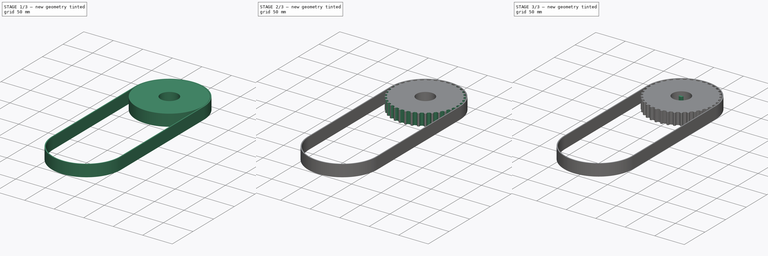
[diagram: build sequence overview — one tinted view per stage of 3, left to right]
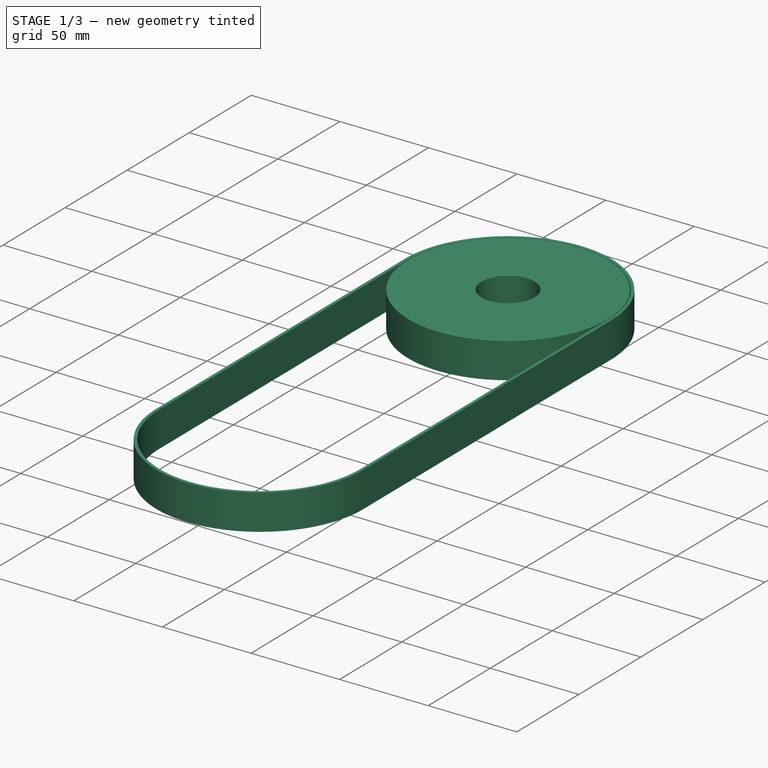
[diagram: stage 1 of 3 — iso view after this stage's code; geometry added in this stage tinted green]
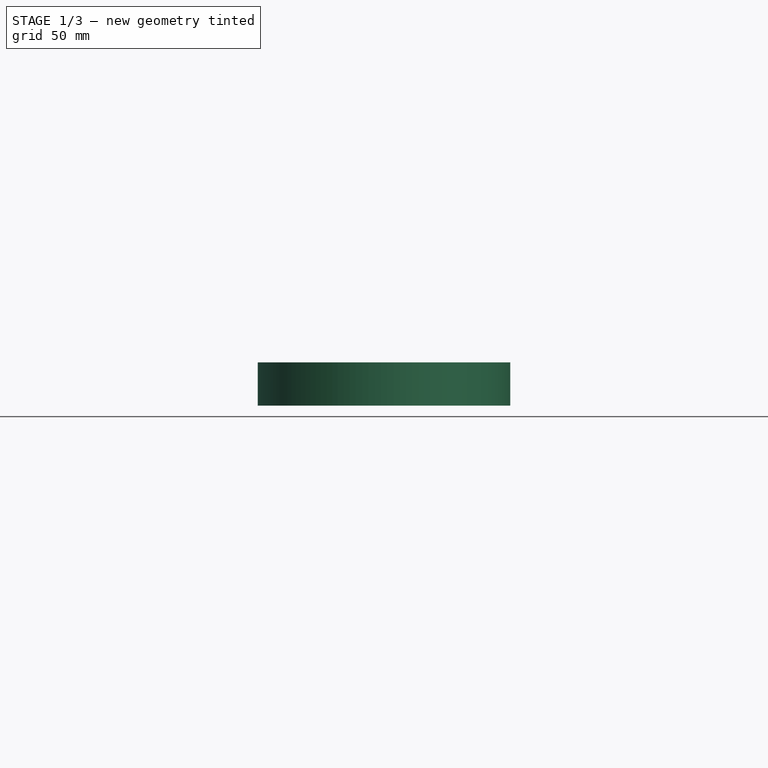
[diagram: stage 1 of 3 — front view after this stage's code; geometry added in this stage tinted green]
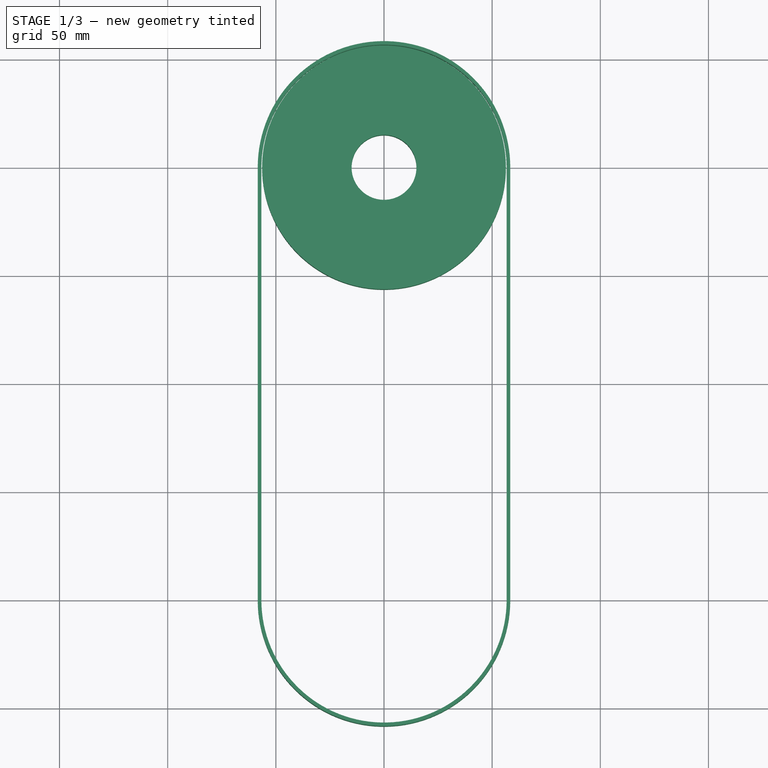
[diagram: stage 1 of 3 — top view after this stage's code; geometry added in this stage tinted green]
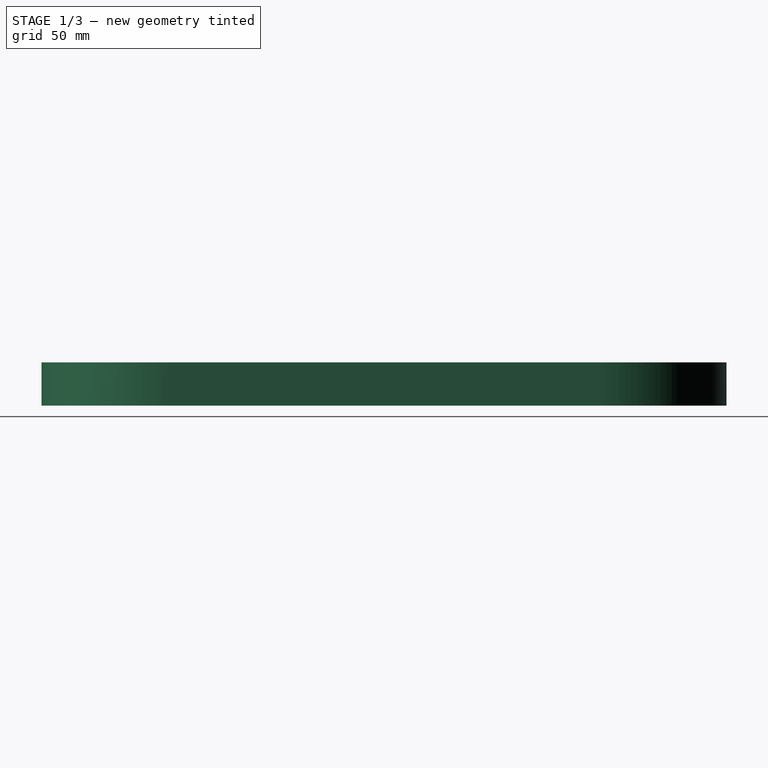
[diagram: stage 1 of 3 — right view after this stage's code; geometry added in this stage tinted green]
FCSTD DOCUMENT  (FreeCAD 1.0R39319 (Git))
Label: timingBelt_project
License: All rights reserved
LicenseURL: https://en.wikipedia.org/wiki/All_rights_reserved
objects: PartDesign::CoordinateSystem×8, Sketcher::SketchObject×6, PartDesign::Pad×4, App::Link×4, App::DocumentObjectGroup×3, PartDesign::Body×3, App::FeaturePython×1, PartDesign::Pocket×1, PartDesign::PolarPattern×1, Part::FeaturePython×1, App::Part×1
note: 41 computed .brp shape members not serialized (recipe doc carries the construction recipe); baked Part::Feature solids carry a one-line shape summary decoded from their .brp

FEATURE [PartDesign::CoordinateSystem] LCS_Origin
  AttacherType = Attacher::AttachEngine3D
  AttachmentSupport = -> [X_Axis]
  MapMode = 2
FEATURE [App::DocumentObjectGroup] Constraints
FEATURE [App::FeaturePython] Variables  # WARN: FeaturePython — macro-defined, semantics opaque (R4)
  Type = App::PropertyContainer
  angle = 758
  radius = 57.29
FEATURE [App::DocumentObjectGroup] Configurations
FEATURE [PartDesign::CoordinateSystem] LCS_Origin001
  AttacherType = Attacher::AttachEngine3D
  AttachmentSupport = -> [X_Axis001]
  MapMode = 2
FEATURE [Sketcher::SketchObject] pulley_sk
  ArcFitTolerance = 0
  AttachmentSupport = -> [LCS_Origin001]
  FullyConstrained = true
  MakeInternals = false
  MapMode = 5
  sketch-geometry (2):
    g0: Circle CenterX=0 CenterY=0 CenterZ=0 NormalX=0 NormalY=0 NormalZ=1 AngleXU=0 Radius=15
    g1: Circle CenterX=0 CenterY=0 CenterZ=0 NormalX=0 NormalY=0 NormalZ=1 AngleXU=0 Radius=56.375
  constraints (4):
    c: Coincident(g0,g-1)
    c: Diameter(g0) = 30
    c: Coincident(g1,g0)
    c: Diameter(g1) = 112.75
FEATURE [PartDesign::Pad] Pad
  Direction = (0,0,1)
  Length = 20
  Length2 = 10
  Midplane = true
  Profile = -> pulley_sk
  ReferenceAxis = -> pulley_sk [N_Axis]
  Refine = true
  Suppressed = false
  Type = 0
FEATURE [PartDesign::CoordinateSystem] LCS_Origin003  label="tooth-LCS"
  AttacherType = Attacher::AttachEngine3D
  AttachmentSupport = -> [X_Axis002]
  MapMode = 2
FEATURE [PartDesign::Body] tooth
  AllowCompound = false
  Group = -> [LCS_Origin002,tooth_sk,Pad002,LCS_Origin003]
  Origin = -> Origin002
  Tip = -> Pad002
FEATURE [PartDesign::CoordinateSystem] LCS_Origin004
  AttacherType = Attacher::AttachEngine3D
  AttachmentSupport = -> [X_Axis003]
  MapMode = 2
FEATURE [Sketcher::SketchObject] belt_sk  label="belt-sk"
  ArcFitTolerance = 1e-06
  AttachmentSupport = -> [LCS_Origin004]
  FullyConstrained = true
  MakeInternals = false
  MapMode = 5
  sketch-geometry (8):
    g0: ArcOfCircle CenterX=0 CenterY=0 CenterZ=0 NormalX=0 NormalY=0 NormalZ=1 AngleXU=0 Radius=56.7 StartAngle=1e-16 EndAngle=3.14159
    g1: ArcOfCircle CenterX=-2.7e-15 CenterY=-200 CenterZ=0 NormalX=0 NormalY=0 NormalZ=1 AngleXU=0 Radius=56.7 StartAngle=3.14159 EndAngle=6.28319
    g2: LineSegment StartX=56.7 StartY=6.9e-15 StartZ=0 EndX=56.7 EndY=-200 EndZ=0
    g3: LineSegment StartX=-56.7 StartY=6.9e-15 StartZ=0 EndX=-56.7 EndY=-200 EndZ=0
    g4: ArcOfCircle CenterX=0 CenterY=0 CenterZ=0 NormalX=0 NormalY=0 NormalZ=1 AngleXU=0 Radius=58.376 StartAngle=1e-16 EndAngle=3.14159
    g5: ArcOfCircle CenterX=-2.7e-15 CenterY=-200 CenterZ=0 NormalX=0 NormalY=0 NormalZ=1 AngleXU=0 Radius=58.376 StartAngle=3.14159 EndAngle=6.28319
    g6: LineSegment StartX=58.376 StartY=7.1e-15 StartZ=0 EndX=58.376 EndY=-200 EndZ=0
    g7: LineSegment StartX=-58.376 StartY=7.1e-15 StartZ=0 EndX=-58.376 EndY=-200 EndZ=0
  constraints (18):
    c: Tangent(g0,g2) = 1.5708
    c: Tangent(g0,g3) = -1.5708
    c: Tangent(g1,g2) = 1.5708
    c: Tangent(g1,g3) = -1.5708
    c: Equal(g0,g1)
    c: Vertical(g3)
    c: Coincident(g0,g-1)
    c: Diameter(g0) = 113.4
    c: DistanceY(g2,g2) = 200
    c: Tangent(g4,g6) = 1.5708
    c: Tangent(g4,g7) = -1.5708
    c: Tangent(g5,g6) = 1.5708
    c: Tangent(g5,g7) = -1.5708
    c: Equal(g4,g5)
    c: Vertical(g7)
    c: Coincident(g4,g0)
    c: Diameter(g4) = 116.752
    c: DistanceY(g6,g6) = 200
FEATURE [PartDesign::Pad] Pad003
  Direction = (0,0,1)
  Length = 20
  Length2 = 10
  Midplane = true
  Profile = -> belt_sk
  ReferenceAxis = -> belt_sk [N_Axis]
  Refine = true
  Suppressed = false
  Type = 0
FEATURE [PartDesign::Body] belt
  AllowCompound = false
  Group = -> [LCS_Origin004,belt_sk,Pad003]
  Origin = -> Origin003
  Tip = -> Pad003
FEATURE [App::DocumentObjectGroup] Parts
  Group = -> [pulley,tooth,belt]
FEATURE [Sketcher::SketchObject] master
  ArcFitTolerance = 1e-06
  AttachmentSupport = -> [LCS_Origin]
  FullyConstrained = true
  MakeInternals = false
  MapMode = 5
  sketch-geometry (4):
    g0: ArcOfCircle CenterX=0 CenterY=0 CenterZ=0 NormalX=0 NormalY=0 NormalZ=1 AngleXU=0 Radius=57.296 StartAngle=1e-16 EndAngle=3.14159
    g1: ArcOfCircle CenterX=2.6e-15 CenterY=-200 CenterZ=0 NormalX=0 NormalY=0 NormalZ=1 AngleXU=0 Radius=57.296 StartAngle=3.14159 EndAngle=6.28319
    g2: LineSegment StartX=57.296 StartY=7e-15 StartZ=0 EndX=57.296 EndY=-200 EndZ=0
    g3: LineSegment StartX=-57.296 StartY=7e-15 StartZ=0 EndX=-57.296 EndY=-200 EndZ=0
  constraints (9):
    c: Tangent(g0,g2) = 1.5708
    c: Tangent(g0,g3) = -1.5708
    c: Tangent(g1,g2) = 1.5708
    c: Tangent(g1,g3) = -1.5708
    c: Equal(g0,g1)
    c: Vertical(g3)
    c: Coincident(g0,g-1)
    c: Diameter(g0) = 114.592
    c: DistanceY(g2,g2) = 200
FEATURE [PartDesign::CoordinateSystem] UC
  AttacherType = Attacher::AttachEngine3D
  AttachmentSupport = -> [master]
  MapMode = 11
  Placement = pos=(-7.1e-15,0,0) rot=(0,0,1;1.5708rad)
FEATURE [PartDesign::CoordinateSystem] LC
  AttacherType = Attacher::AttachEngine3D
  AttachmentSupport = -> [master]
  MapMode = 11
  Placement = pos=(7.1e-15,-200,0) rot=(0,0,-1;1.5708rad)
FEATURE [App::Link] tooth001
  AttachedBy = #LCS_Origin003
  AttachedTo = Parent Assembly#LCS_Origin
  LinkedObject = -> tooth
  SolverId = Asm4EE
  expr: Placement = LCS_Origin.Placement * AttachmentOffset * LCS_Origin003.Placement ^ -1
FEATURE [Part::FeaturePython] XArray_tooth001  # Draft array (typed FeaturePython)
  ArrayType = Expression Array
  Count = 76
  Index = 1
  PlacementList = 76 placements: [(57.29,-2,0),(57.29,-12,0),(57.29,-22,0),(57.29,-32,0),(57.29,-42,0),(57.29,-52,0),(57.29,-62,0),(57.29,-72,0),(57.29,-82,0),(57.29,-92,0),(57.29,-102,0),(57.29,-112,0),(57.29,-122,0),(57.29,-132,0),(57.29,-142,0),(57.29,-152,0),(57.29,-162,0),(57.29,-172,0),(57.29,-182,0),(57.29,-192,0),(57.2551,-201.999,0),(56.0381,-211.911,0),(53.1184,-221.461,0),(48.5847,-230.359,0),(42.5748,-238.334,0),+51 more]
  Placer = pos=(56.7325,7.97323,0) rot=(0,0,1;-1.43117rad)
  ScaleList = (76) [(1,1,1),(1,1,1),(1,1,1),(1,1,1),(1,1,1),(1,1,1),(1,1,1),(1,1,1),(1,1,1),(1,1,1),(1,1,1),(1,1,1),(1,1,1),(1,1,1),(1,1,1),(1,1,1),(1,1,1),(1,1,1),+58 more]
  Scaler = 1
  ShowElement = false
  SourceObject = -> tooth001
  expr: .Placer.Base.x = Variables.angle - Index * 10 > 560 ? Variables.radius : (Variables.angle - Index * 10 > 380 ? cos(Variables.angle - Index * 10 - 200) * Variables.radius : (Variables.angle - Index * 10 > 180 ? -Variables.radius : cos(Variables.angle - Index * 10) * Variables.radius))
  expr: .Placer.Base.y = Variables.angle - Index * 10 > 560 ? Variables.angle - Index * 10 - 560 - 200 : (Variables.angle - Index * 10 > 380 ? sin(Variables.angle - Index * 10 - 200) * Variables.radius - 200 : (Variables.angle - Index * 10 > 180 ? -(Variables.angle - Index * 10 - 180) : sin(Variables.angle - Index * 10) * Variables.radius))
  expr: .Placer.Rotation.Angle = Variables.angle - Index * 10 > 560 ? -90 : (Variables.angle - Index * 10 > 380 ? Variables.angle - Index * 10 - 380 + 90 : (Variables.angle - Index * 10 > 180 ? 90 : Variables.angle - Index * 10 - 90))
FEATURE [App::Link] pulley001
  AttachedBy = #p_lcs
  AttachedTo = Parent Assembly#UC
  LinkPlacement = pos=(-7.1e-15,0,0) rot=(0.945519,0.325568,0;3.14159rad)
  LinkedObject = -> pulley
  Placement = pos=(-7.1e-15,0,0) rot=(0.945519,0.325568,0;3.14159rad)
  SolverId = Asm4EE
  expr: Placement = UC.Placement * AttachmentOffset * p_lcs.Placement ^ -1
FEATURE [App::Link] pulley002
  AttachedBy = #p_lcs
  AttachedTo = Parent Assembly#LC
  LinkPlacement = pos=(7.1e-15,-200,0) rot=(0.325568,-0.945519,0;3.14159rad)
  LinkedObject = -> pulley
  Placement = pos=(7.1e-15,-200,0) rot=(0.325568,-0.945519,0;3.14159rad)
  SolverId = Asm4EE
  expr: Placement = LC.Placement * AttachmentOffset * p_lcs.Placement ^ -1
FEATURE [App::Link] belt001
  AttachedBy = #LCS_Origin004
  AttachedTo = Parent Assembly#LCS_Origin
  LinkedObject = -> belt
  SolverId = Asm4EE
  expr: Placement = LCS_Origin.Placement * AttachmentOffset * LCS_Origin004.Placement ^ -1
FEATURE [App::Part] Assembly
  AssemblyType = Part::Link
  Group = -> [LCS_Origin,Constraints,Variables,Configurations,master,UC,LC,tooth001,XArray_tooth001,pulley001,pulley002,belt001]
  Origin = -> Origin
  Type = Assembly
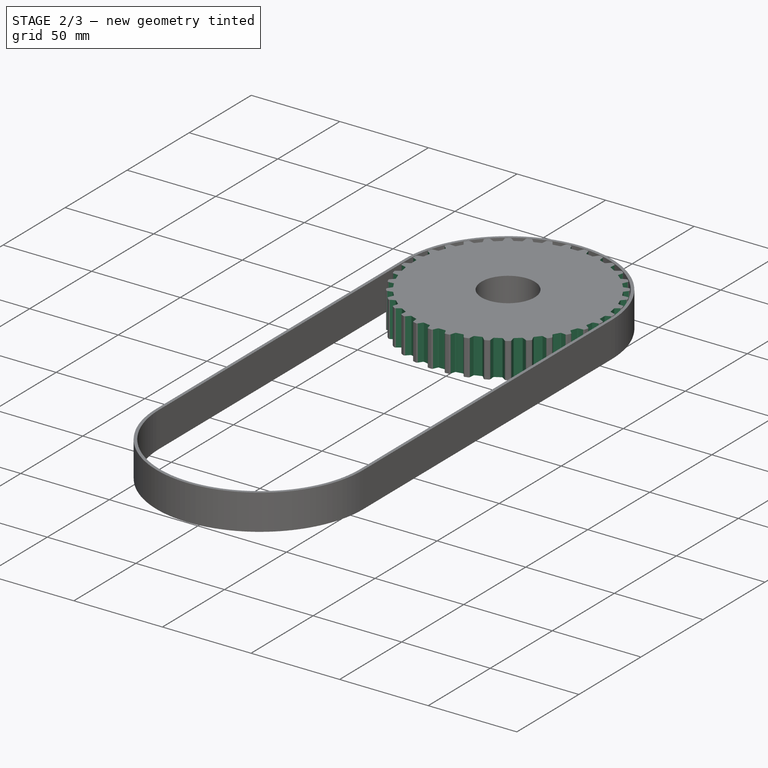
[diagram: stage 2 of 3 — iso view after this stage's code; geometry added in this stage tinted green]
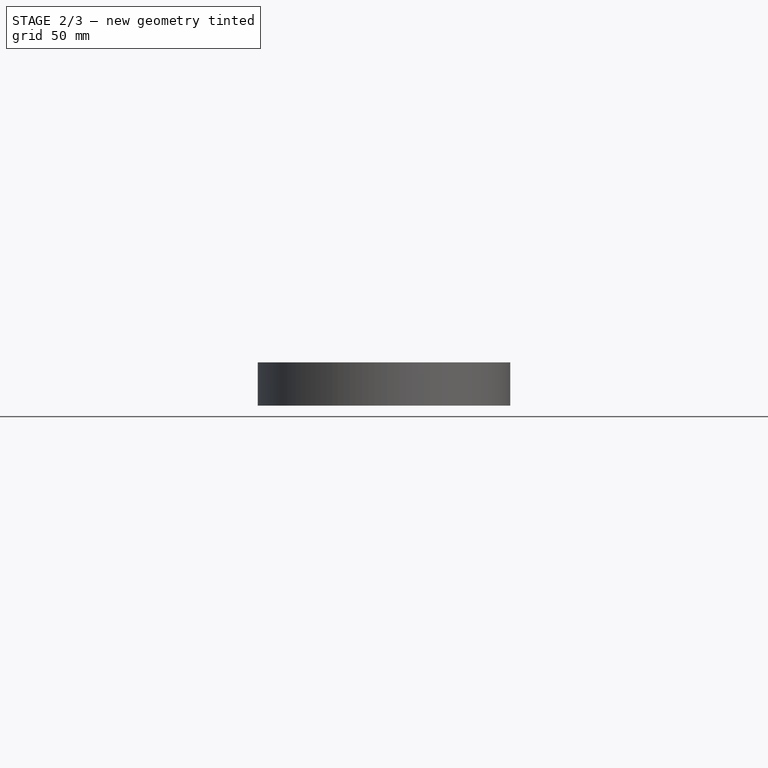
[diagram: stage 2 of 3 — front view after this stage's code; geometry added in this stage tinted green]
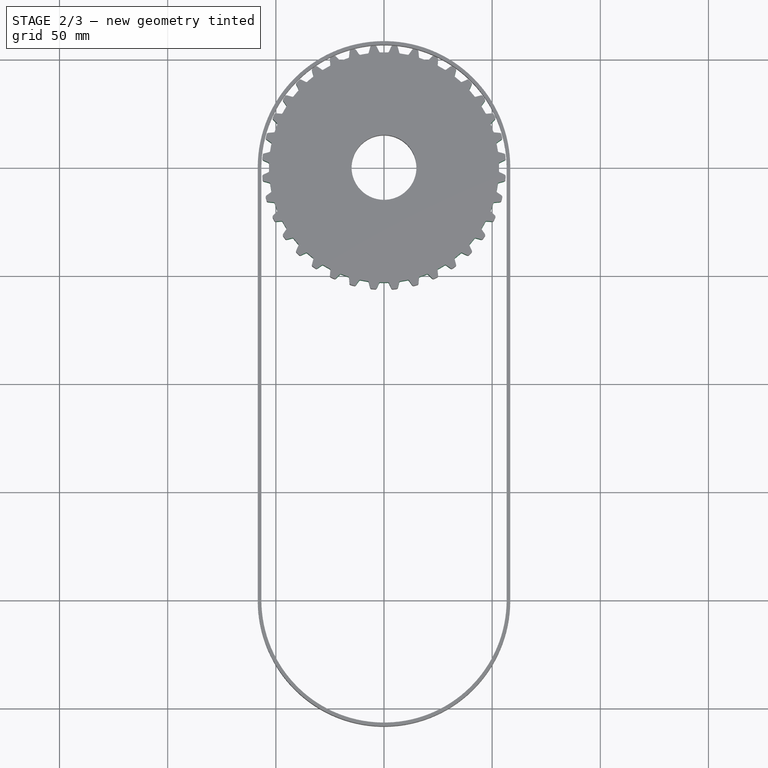
[diagram: stage 2 of 3 — top view after this stage's code; geometry added in this stage tinted green]
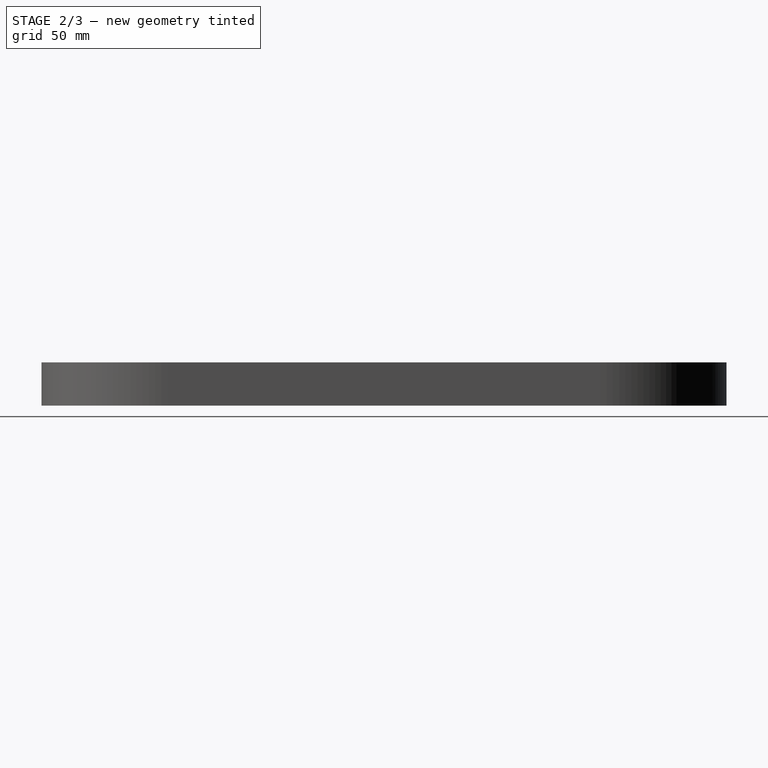
[diagram: stage 2 of 3 — right view after this stage's code; geometry added in this stage tinted green]
FEATURE [Sketcher::SketchObject] Sketch
  ArcFitTolerance = 0
  AttachmentSupport = -> [XY_Plane001]
  ExternalGeometry = -> [Pad]
  FullyConstrained = false
  MakeInternals = false
  MapMode = 5
  sketch-geometry (15):
    g0: Circle [constr] CenterX=0 CenterY=0 CenterZ=0 NormalX=0 NormalY=0 NormalZ=1 AngleXU=0 Radius=53.175
    g1: ArcOfCircle CenterX=0 CenterY=0 CenterZ=0 NormalX=0 NormalY=0 NormalZ=1 AngleXU=0 Radius=53.175 StartAngle=1.53882 EndAngle=1.60277
    g2: ArcOfCircle CenterX=0 CenterY=0 CenterZ=0 NormalX=0 NormalY=0 NormalZ=1 AngleXU=0 Radius=56.375 StartAngle=1.47308 EndAngle=1.49791
    g3: LineSegment [constr] StartX=3.63683 StartY=56.4402 StartZ=0 EndX=0 EndY=48.641 EndZ=0
    g4: LineSegment [constr] StartX=-3.55413 StartY=56.2629 StartZ=0 EndX=0 EndY=48.641 EndZ=0
    g5: ArcOfCircle CenterX=0 CenterY=0 CenterZ=0 NormalX=0 NormalY=0 NormalZ=1 AngleXU=0 Radius=56.375 StartAngle=1.64369 EndAngle=1.66851
    g6: LineSegment StartX=3.32222 StartY=55.7655 StartZ=0 EndX=2.26297 EndY=53.4939 EndZ=0
    g7: LineSegment StartX=-3.32222 StartY=55.7655 StartZ=0 EndX=-2.26297 EndY=53.4939 EndZ=0
    g8: ArcOfCircle CenterX=-1.71918 CenterY=53.7475 CenterZ=0 NormalX=0 NormalY=0 NormalZ=1 AngleXU=0 Radius=0.6 StartAngle=3.57792 EndAngle=4.74436
    g9: ArcOfCircle CenterX=1.71918 CenterY=53.7475 CenterZ=0 NormalX=0 NormalY=0 NormalZ=1 AngleXU=0 Radius=0.6 StartAngle=4.68041 EndAngle=5.84685
    g10: LineSegment StartX=-5.5 StartY=56.1061 StartZ=0 EndX=-5.5 EndY=58.1061 EndZ=0
    g11: LineSegment StartX=-5.5 StartY=58.1061 StartZ=0 EndX=5.5 EndY=58.1061 EndZ=0
    g12: LineSegment StartX=5.5 StartY=58.1061 StartZ=0 EndX=5.5 EndY=56.1061 EndZ=0
    g13: ArcOfCircle CenterX=4.04727 CenterY=55.4274 CenterZ=0 NormalX=0 NormalY=0 NormalZ=1 AngleXU=0 Radius=0.8 StartAngle=1.49791 EndAngle=2.70526
    g14: ArcOfCircle CenterX=-4.04727 CenterY=55.4274 CenterZ=0 NormalX=0 NormalY=0 NormalZ=1 AngleXU=0 Radius=0.8 StartAngle=0.436332 EndAngle=1.64369
  constraints (39):
    c: Diameter(g0) = 106.35
    c: Coincident(g0,g-1)
    c: Coincident(g1,g0)
    c: Coincident(g2,g0)
    c: PointOnObject(g5,g-3)
    c: PointOnObject(g3,g-2)
    c: PointOnObject(g4,g5)
    c: Coincident(g4,g3)
    c: Equal(g2,g5)
    c: Coincident(g2,g5)
    c: Angle(g-2,g3) = 2.70526
    c: Angle(g4,g-2) = 2.70526
    c: Parallel(g6,g3)
    c: Parallel(g7,g4)
    c: Tangent(g7,g8) = -1.5708
    c: Tangent(g1,g8) = 1.5708
    c: Tangent(g1,g9) = 1.5708
    c: Tangent(g6,g9) = 1.5708
    c: Radius(g8) = 0.6
    c: Radius(g9) = 0.6
    c: PointOnObject(g1,g0)
    c: DistanceX(g1,g1) = 3.4
    c: Coincident(g5,g10)
    c: Coincident(g10,g11)
    c: Coincident(g11,g12)
    c: Coincident(g12,g2)
    c: Vertical(g12)
    c: Vertical(g10)
    c: Symmetric(g10,g11,g-2)
    c: DistanceX(g11,g11) = 11
    c: DistanceY(g12,g12) = 2
    c: Tangent(g2,g13) = -1.5708
    c: Tangent(g6,g13) = -1.5708
    c: Radius(g13) = 0.8
    c: PointOnObject(g6,g3)
    c: Tangent(g5,g14) = -1.5708
    c: Tangent(g7,g14) = 1.5708
    c: Radius(g14) = 0.8
    c: PointOnObject(g7,g4)
FEATURE [PartDesign::Pocket] Pocket
  BaseFeature = -> Pad
  Direction = (0,0,-1)
  Length = 5
  Length2 = 5
  Midplane = true
  Profile = -> Sketch
  ReferenceAxis = -> Sketch [N_Axis]
  Refine = true
  Suppressed = false
  Type = 1
FEATURE [PartDesign::PolarPattern] PolarPattern
  Angle = 360
  Axis = -> Sketch [N_Axis]
  BaseFeature = -> Pocket
  Mode = 0
  Occurrences = 36
  Offset = 120
  Originals = -> [Pocket]
  Refine = true
  Suppressed = false
  TransformMode = 0
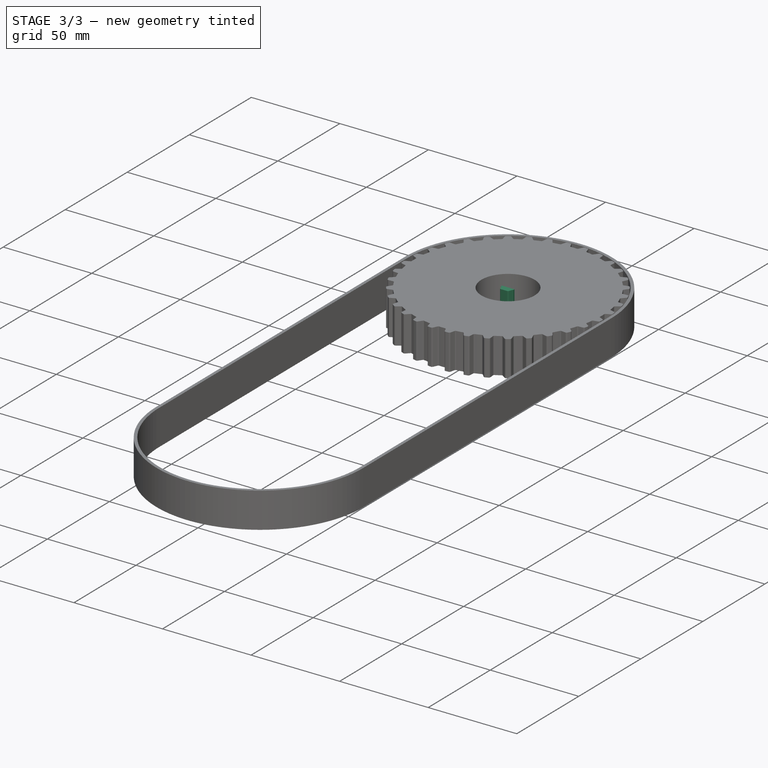
[diagram: stage 3 of 3 — iso view after this stage's code; geometry added in this stage tinted green]
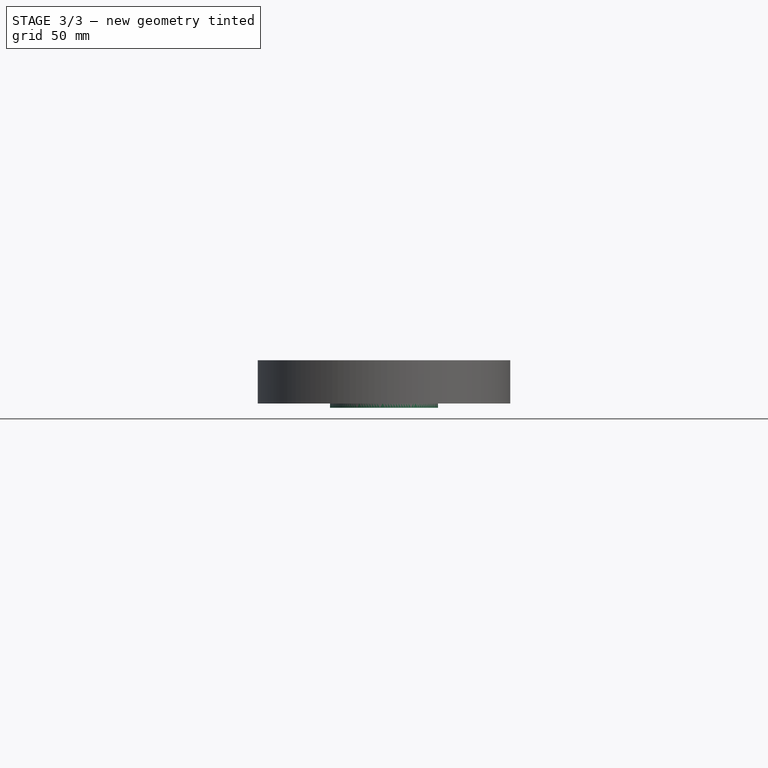
[diagram: stage 3 of 3 — front view after this stage's code; geometry added in this stage tinted green]
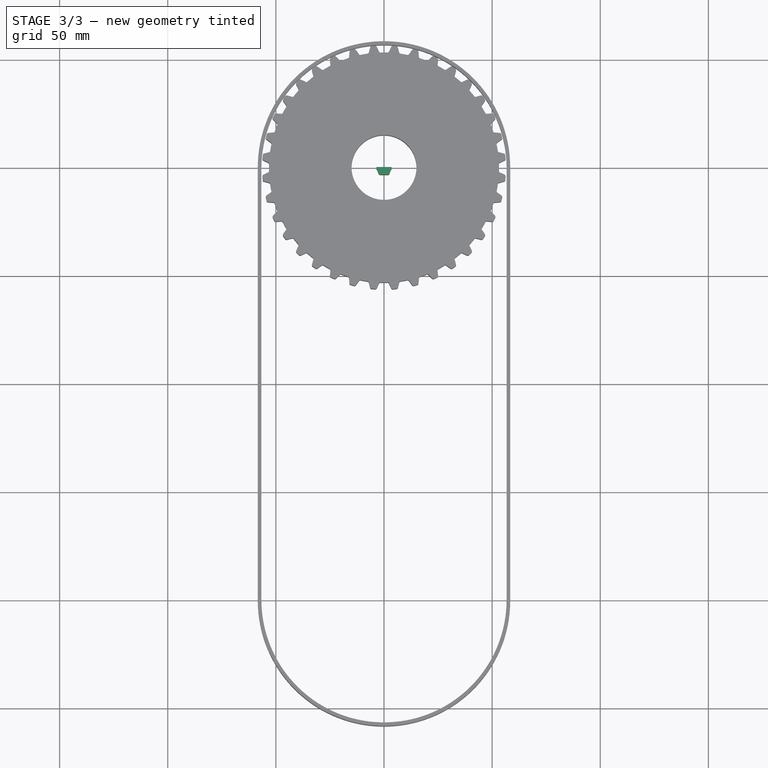
[diagram: stage 3 of 3 — top view after this stage's code; geometry added in this stage tinted green]
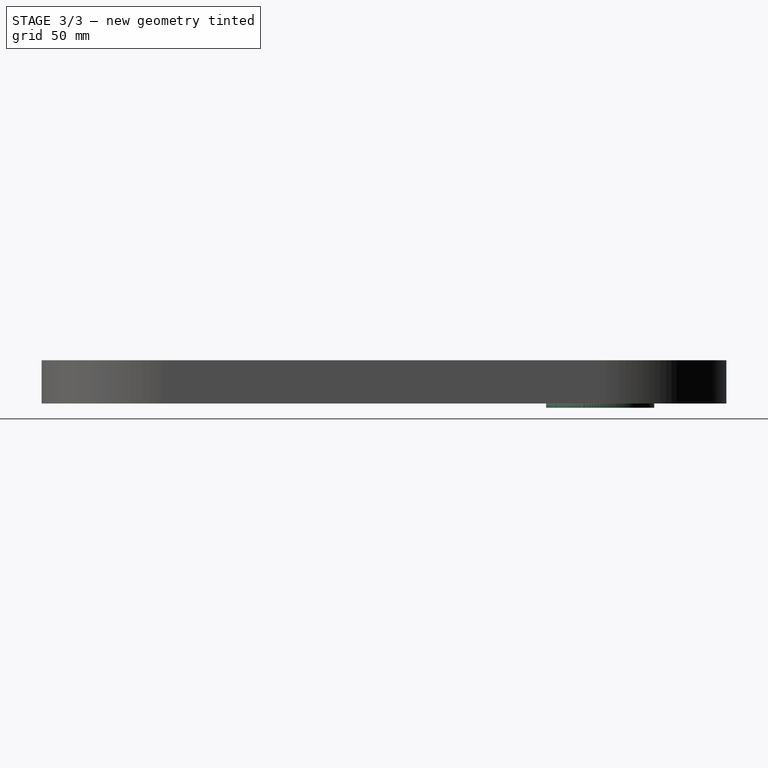
[diagram: stage 3 of 3 — right view after this stage's code; geometry added in this stage tinted green]
FEATURE [Sketcher::SketchObject] Sketch001
  ArcFitTolerance = 1e-06
  AttachmentSupport = -> [PolarPattern]
  ExternalGeometry = -> [PolarPattern]
  FullyConstrained = true
  MakeInternals = false
  MapMode = 5
  Placement = pos=(0,0,-10) rot=(1,0,0;3.14159rad)
  sketch-geometry (2):
    g0: Circle CenterX=0 CenterY=0 CenterZ=0 NormalX=0 NormalY=0 NormalZ=1 AngleXU=0 Radius=25
    g1: Circle CenterX=0 CenterY=0 CenterZ=0 NormalX=0 NormalY=0 NormalZ=1 AngleXU=0 Radius=15
  constraints (4):
    c: Coincident(g0,g-1)
    c: Diameter(g0) = 50
    c: Coincident(g1,g0)
    c: Equal(g1,g-3)
FEATURE [PartDesign::Pad] Pad001
  BaseFeature = -> PolarPattern
  Direction = (0,0,-1)
  Length = 2
  Length2 = 10
  Profile = -> Sketch001
  ReferenceAxis = -> Sketch001 [N_Axis]
  Refine = true
  Suppressed = false
  Type = 0
FEATURE [PartDesign::CoordinateSystem] p_lcs  label="p-lcs"
  AttacherType = Attacher::AttachEngine3D
  AttachmentOffset = pos=(0,0,-12) rot=(0,0,1;-13.2296rad)
  AttachmentSupport = -> [Pad001]
  MapMode = 11
  Placement = pos=(0,0,0) rot=(-0.898794,0.438371,0;3.14159rad)
  expr: .AttachmentOffset.Rotation.Angle = -Variables.angle
FEATURE [PartDesign::Body] pulley
  AllowCompound = false
  Group = -> [LCS_Origin001,pulley_sk,Pad,Sketch,Pocket,PolarPattern,Sketch001,Pad001,p_lcs]
  Origin = -> Origin001
  Tip = -> Pad001
FEATURE [PartDesign::CoordinateSystem] LCS_Origin002
  AttacherType = Attacher::AttachEngine3D
  AttachmentSupport = -> [X_Axis002]
  MapMode = 2
FEATURE [Sketcher::SketchObject] tooth_sk  label="tooth-sk"
  ArcFitTolerance = 1e-06
  AttachmentSupport = -> [LCS_Origin002]
  FullyConstrained = true
  MakeInternals = false
  MapMode = 5
  sketch-geometry (16):
    g0: LineSegment StartX=-3.5 StartY=0.2 StartZ=0 EndX=-3.5 EndY=-0.8 EndZ=0
    g1: LineSegment StartX=-3.5 StartY=-0.8 StartZ=0 EndX=-3.36013 EndY=-0.8 EndZ=0
    g2: LineSegment StartX=-3.17219 StartY=-0.931596 StartZ=0 EndX=-2.50175 EndY=-2.77362 EndZ=0
    g3: LineSegment StartX=-1.75 StartY=-3.3 StartZ=0 EndX=1.75 EndY=-3.3 EndZ=0
    g4: LineSegment StartX=2.50175 StartY=-2.77362 StartZ=0 EndX=3.17219 EndY=-0.931596 EndZ=0
    g5: LineSegment StartX=3.36013 StartY=-0.8 StartZ=0 EndX=3.5 EndY=-0.8 EndZ=0
    g6: LineSegment StartX=3.5 StartY=-0.8 StartZ=0 EndX=3.5 EndY=0.2 EndZ=0
    g7: LineSegment StartX=3.5 StartY=0.2 StartZ=0 EndX=-3.5 EndY=0.2 EndZ=0
    g8: ArcOfCircle CenterX=-1.75 CenterY=-2.5 CenterZ=0 NormalX=0 NormalY=0 NormalZ=1 AngleXU=0 Radius=0.8 StartAngle=3.49066 EndAngle=4.71239
    g9: GeomPoint [constr] X=-2.31017 Y=-3.3 Z=0
    g10: ArcOfCircle CenterX=1.75 CenterY=-2.5 CenterZ=0 NormalX=0 NormalY=0 NormalZ=1 AngleXU=0 Radius=0.8 StartAngle=4.71239 EndAngle=5.93412
    g11: GeomPoint [constr] X=2.31017 Y=-3.3 Z=0
    g12: ArcOfCircle CenterX=-3.36013 CenterY=-1 CenterZ=0 NormalX=0 NormalY=0 NormalZ=1 AngleXU=0 Radius=0.2 StartAngle=0.349066 EndAngle=1.5708
    g13: GeomPoint [constr] X=-3.22009 Y=-0.8 Z=0
    g14: ArcOfCircle CenterX=3.36013 CenterY=-1 CenterZ=0 NormalX=0 NormalY=0 NormalZ=1 AngleXU=0 Radius=0.2 StartAngle=1.5708 EndAngle=2.79253
    g15: GeomPoint [constr] X=3.22009 Y=-0.8 Z=0
  constraints (38):
    c: Vertical(g0)
    c: Coincident(g0,g1)
    c: Horizontal(g1)
    c: Horizontal(g5)
    c: Coincident(g5,g6)
    c: Vertical(g6)
    c: Coincident(g6,g7)
    c: Coincident(g7,g0)
    c: DistanceX(g7,g7) = 7
    c: DistanceY(g6,g6) = 1
    c: DistanceY(g-1,g6) = 0.2
    c: Symmetric(g0,g6,g-2)
    c: PointOnObject(g9,g2)
    c: PointOnObject(g9,g3)
    c: Tangent(g2,g8) = -1.5708
    c: Tangent(g3,g8) = -1.5708
    c: PointOnObject(g11,g3)
    c: PointOnObject(g11,g4)
    c: Tangent(g3,g10) = -1.5708
    c: Tangent(g4,g10) = -1.5708
    c: Radius(g10) = 0.8
    c: DistanceX(g3,g3) = 3.5
    c: Equal(g8,g10)
    c: Angle(g4,g-2) = 0.349066
    c: Angle(g-2,g2) = 0.349066
    c: Horizontal(g5,g0)
    c: DistanceY(g3,g6) = 3.5
    c: Symmetric(g3,g3,g-2)
    c: PointOnObject(g13,g1)
    c: PointOnObject(g13,g2)
    c: Tangent(g1,g12) = 1.5708
    c: Tangent(g2,g12) = 1.5708
    c: Radius(g12) = 0.2
    c: PointOnObject(g15,g5)
    c: PointOnObject(g15,g4)
    c: Tangent(g5,g14) = 1.5708
    c: Tangent(g4,g14) = 1.5708
    c: Radius(g14) = 0.2
FEATURE [PartDesign::Pad] Pad002
  Direction = (0,0,1)
  Length = 20
  Length2 = 10
  Midplane = true
  Profile = -> tooth_sk
  ReferenceAxis = -> tooth_sk [N_Axis]
  Refine = true
  Suppressed = false
  Type = 0
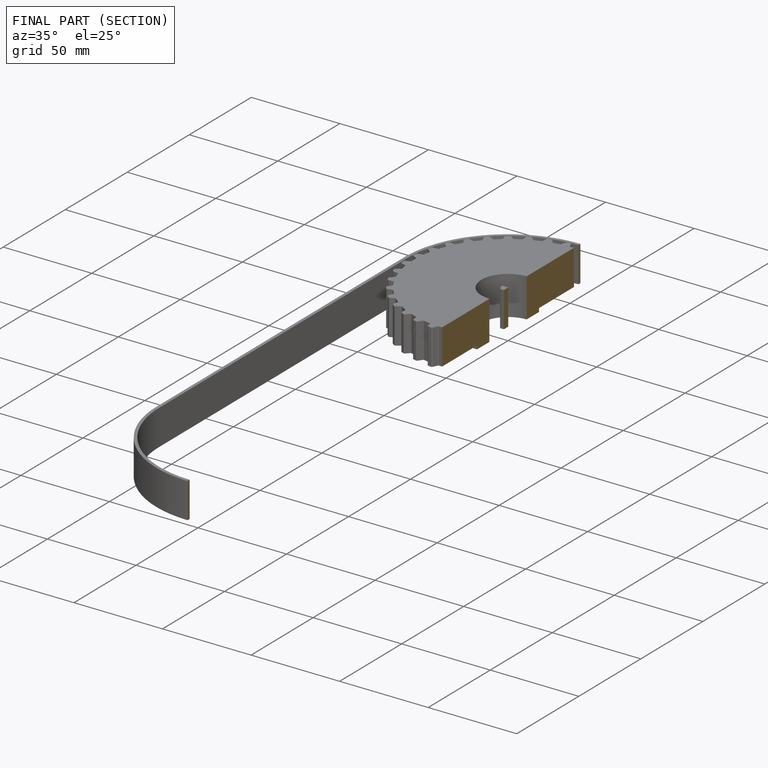
[diagram: finished part — half-section view (interior)]
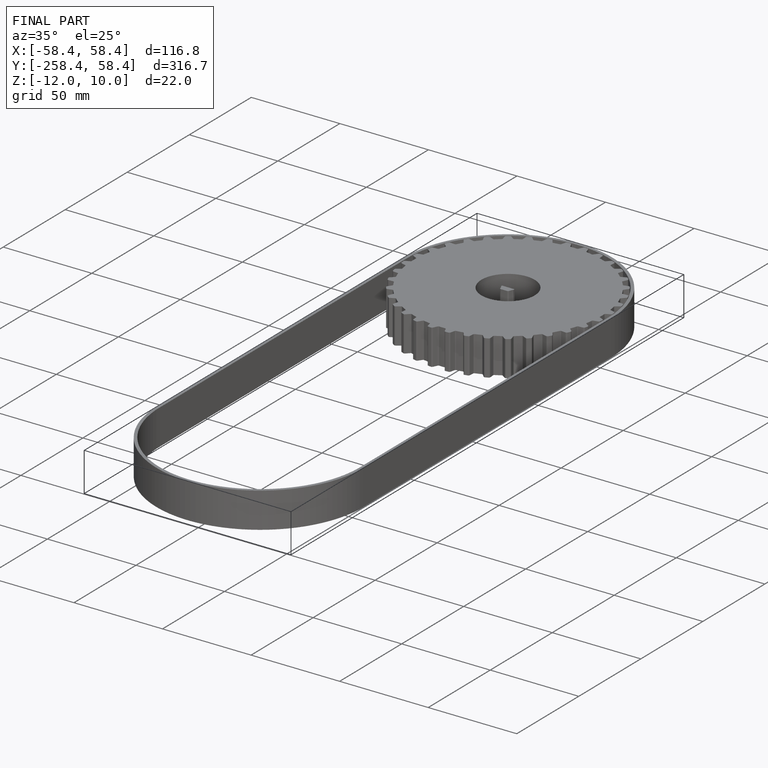
[diagram: finished part — iso view with bounding-box wireframe]
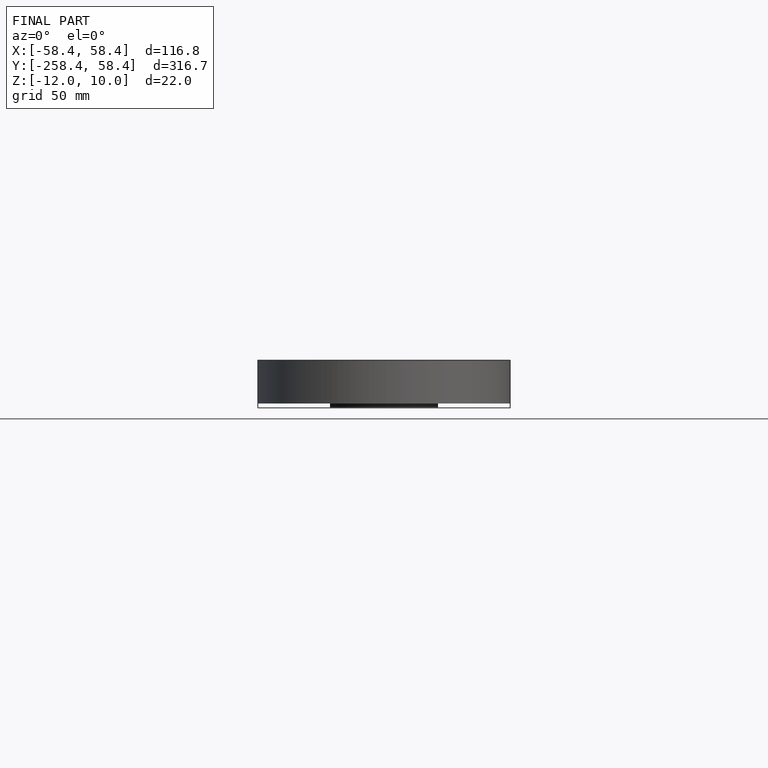
[diagram: finished part — front view with bounding-box wireframe]
